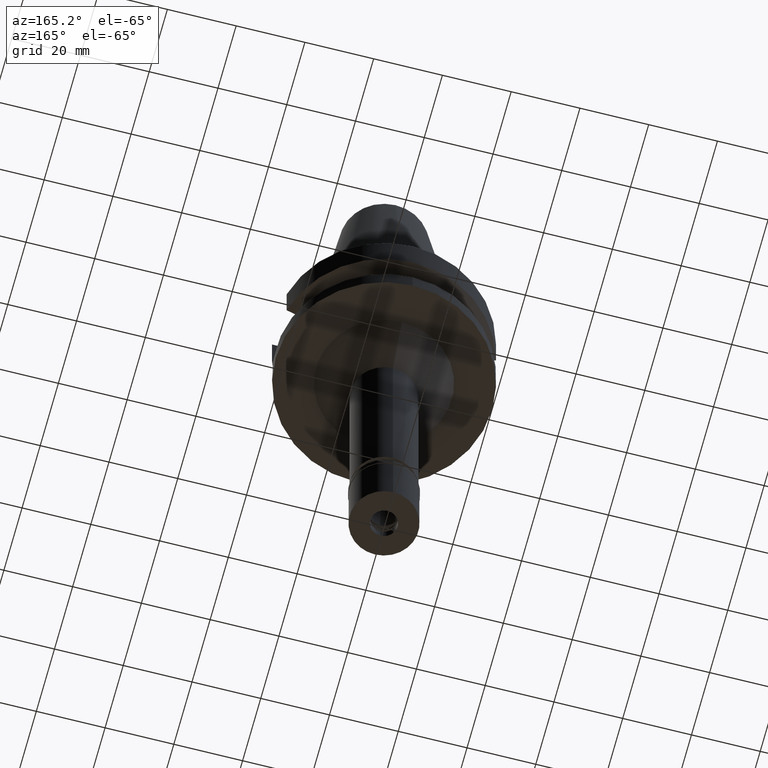
[diagram: clean part render]
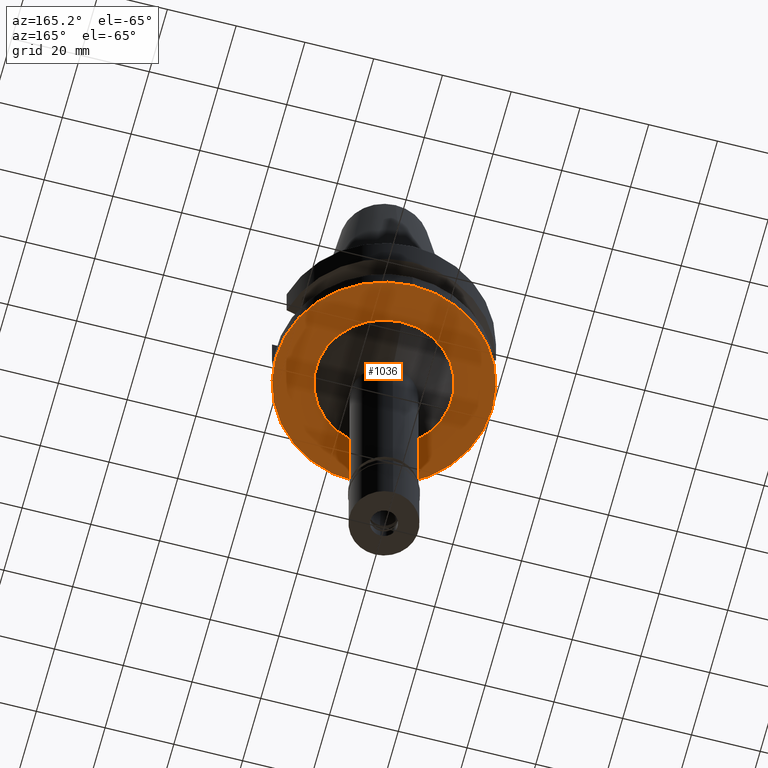
[diagram: same view with one face highlighted and labeled with its STEP entity id]
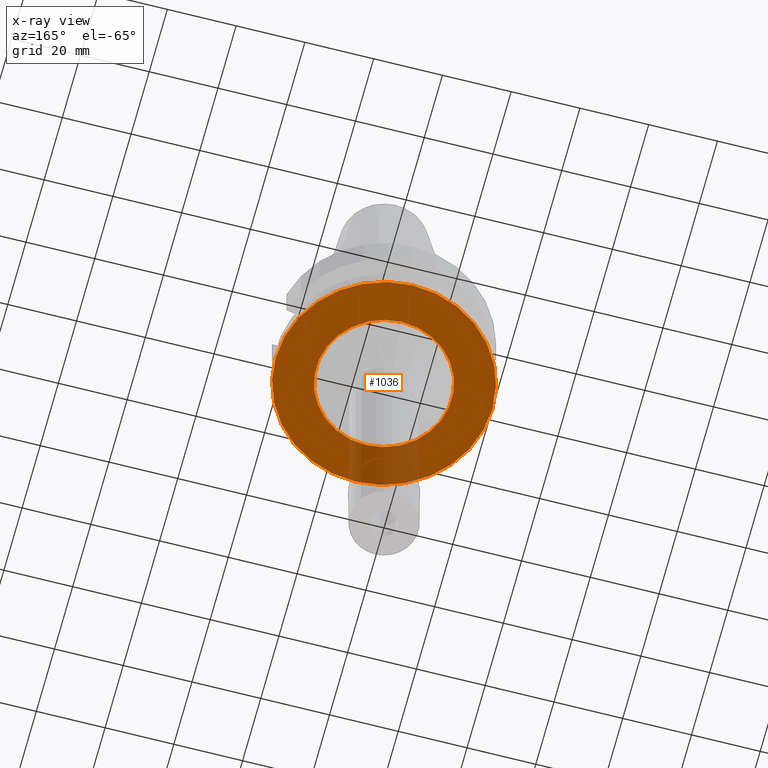
[diagram: x-ray of the same camera — body ghosted, the highlighted face saturated]
A machine part, auxiliary view. The second image highlights one B-rep face of the part: STEP entity #1036.
The next image is the same camera in x-ray: the body ghosted, the highlighted face saturated — about 12% of this face is hidden behind the body in this view.
In plain terms, the highlighted planar face has unit normal (0, 0, -1).
Its self-contained STEP definition (entity closure, byte-faithful):
#38 = CARTESIAN_POINT ( 'NONE',  ( 0.0000000000000000000, 0.0000000000000000000, -27.00000000000000000 ) ) ;
#41 = VERTEX_POINT ( 'NONE', #1624 ) ;
#52 = FACE_BOUND ( 'NONE', #1005, .T. ) ;
#81 = CARTESIAN_POINT ( 'NONE',  ( 0.0000000000000000000, 0.0000000000000000000, -27.00000000000000000 ) ) ;
#98 = AXIS2_PLACEMENT_3D ( 'NONE', #1639, #1200, #2377 ) ;
#188 = VERTEX_POINT ( 'NONE', #264 ) ;
#260 = AXIS2_PLACEMENT_3D ( 'NONE', #1364, #1854, #2141 ) ;
#264 = CARTESIAN_POINT ( 'NONE',  ( 0.0000000000000000000, -31.50000000000000000, -27.00000000000000000 ) ) ;
#329 = EDGE_CURVE ( 'NONE', #188, #654, #1757, .T. ) ;
#403 = AXIS2_PLACEMENT_3D ( 'NONE', #509, #955, #2439 ) ;
#509 = CARTESIAN_POINT ( 'NONE',  ( 0.0000000000000000000, 0.0000000000000000000, -27.00000000000000000 ) ) ;
#537 = FACE_OUTER_BOUND ( 'NONE', #1610, .T. ) ;
#654 = VERTEX_POINT ( 'NONE', #1806 ) ;
#955 = DIRECTION ( 'NONE',  ( 0.0000000000000000000, 0.0000000000000000000, 1.000000000000000000 ) ) ;
#999 = DIRECTION ( 'NONE',  ( 0.0000000000000000000, 0.0000000000000000000, -1.000000000000000000 ) ) ;
#1005 = EDGE_LOOP ( 'NONE', ( #2951, #1111 ) ) ;
#1020 = ORIENTED_EDGE ( 'NONE', *, *, #2023, .F. ) ;
#1036 = ADVANCED_FACE ( 'NONE', ( #537, #52 ), #1930, .T. ) ;
#1060 = DIRECTION ( 'NONE',  ( 0.0000000000000000000, 1.000000000000000000, 0.0000000000000000000 ) ) ;
#1111 = ORIENTED_EDGE ( 'NONE', *, *, #2104, .F. ) ;
#1142 = VERTEX_POINT ( 'NONE', #1924 ) ;
#1145 = CIRCLE ( 'NONE', #1332, 19.75000000000000000 ) ;
#1200 = DIRECTION ( 'NONE',  ( 0.0000000000000000000, 0.0000000000000000000, -1.000000000000000000 ) ) ;
#1289 = DIRECTION ( 'NONE',  ( 0.0000000000000000000, 0.0000000000000000000, -1.000000000000000000 ) ) ;
#1332 = AXIS2_PLACEMENT_3D ( 'NONE', #81, #1289, #1060 ) ;
#1364 = CARTESIAN_POINT ( 'NONE',  ( 0.0000000000000000000, 0.0000000000000000000, -27.00000000000000000 ) ) ;
#1452 = CIRCLE ( 'NONE', #98, 19.75000000000000000 ) ;
#1608 = ORIENTED_EDGE ( 'NONE', *, *, #329, .F. ) ;
#1610 = EDGE_LOOP ( 'NONE', ( #1020, #1608 ) ) ;
#1624 = CARTESIAN_POINT ( 'NONE',  ( 0.0000000000000000000, 19.75000000000000000, -27.00000000000000000 ) ) ;
#1639 = CARTESIAN_POINT ( 'NONE',  ( 0.0000000000000000000, 0.0000000000000000000, -27.00000000000000000 ) ) ;
#1757 = CIRCLE ( 'NONE', #403, 31.50000000000000000 ) ;
#1806 = CARTESIAN_POINT ( 'NONE',  ( 0.0000000000000000000, 31.50000000000000000, -27.00000000000000000 ) ) ;
#1854 = DIRECTION ( 'NONE',  ( 0.0000000000000000000, 0.0000000000000000000, 1.000000000000000000 ) ) ;
#1924 = CARTESIAN_POINT ( 'NONE',  ( 0.0000000000000000000, -19.75000000000000000, -27.00000000000000000 ) ) ;
#1930 = PLANE ( 'NONE',  #3037 ) ;
#2023 = EDGE_CURVE ( 'NONE', #654, #188, #2118, .T. ) ;
#2104 = EDGE_CURVE ( 'NONE', #1142, #41, #1452, .T. ) ;
#2118 = CIRCLE ( 'NONE', #260, 31.50000000000000000 ) ;
#2141 = DIRECTION ( 'NONE',  ( 0.0000000000000000000, 1.000000000000000000, 0.0000000000000000000 ) ) ;
#2377 = DIRECTION ( 'NONE',  ( 0.0000000000000000000, -1.000000000000000000, 0.0000000000000000000 ) ) ;
#2439 = DIRECTION ( 'NONE',  ( 0.0000000000000000000, -1.000000000000000000, 0.0000000000000000000 ) ) ;
#2655 = DIRECTION ( 'NONE',  ( 0.0000000000000000000, -1.000000000000000000, 0.0000000000000000000 ) ) ;
#2888 = EDGE_CURVE ( 'NONE', #41, #1142, #1145, .T. ) ;
#2951 = ORIENTED_EDGE ( 'NONE', *, *, #2888, .F. ) ;
#3037 = AXIS2_PLACEMENT_3D ( 'NONE', #38, #999, #2655 ) ;